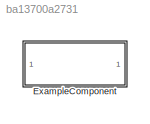
MODEL slx_ba13700a2731
KIND library
CONFIG AbsTol = auto
CONFIG EnableMultiTasking = off
CONFIG FixedStep = auto
CONFIG MaxStep = auto
CONFIG MinStep = auto
CONFIG RelTol = 1e-3
CONFIG SampleTimeConstraint = Unconstrained
CONFIG SolverName = FixedStepDiscrete
CONFIG StartTime = 0.0
CONFIG StopTime = 10.0
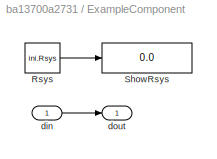
BLOCK [SubSystem] ExampleComponent
  PermitHierarchicalResolution = None
BLOCK [Constant] ExampleComponent/Rsys
  SampleTime = Tsys
  Value = ini.Rsys
BLOCK [Display] ExampleComponent/ShowRsys
  Decimation = 1
BLOCK [Inport] ExampleComponent/din
BLOCK [Outport] ExampleComponent/dout
LINE ExampleComponent/Rsys:1 -> ExampleComponent/ShowRsys:1
LINE ExampleComponent/din:1 -> ExampleComponent/dout:1
